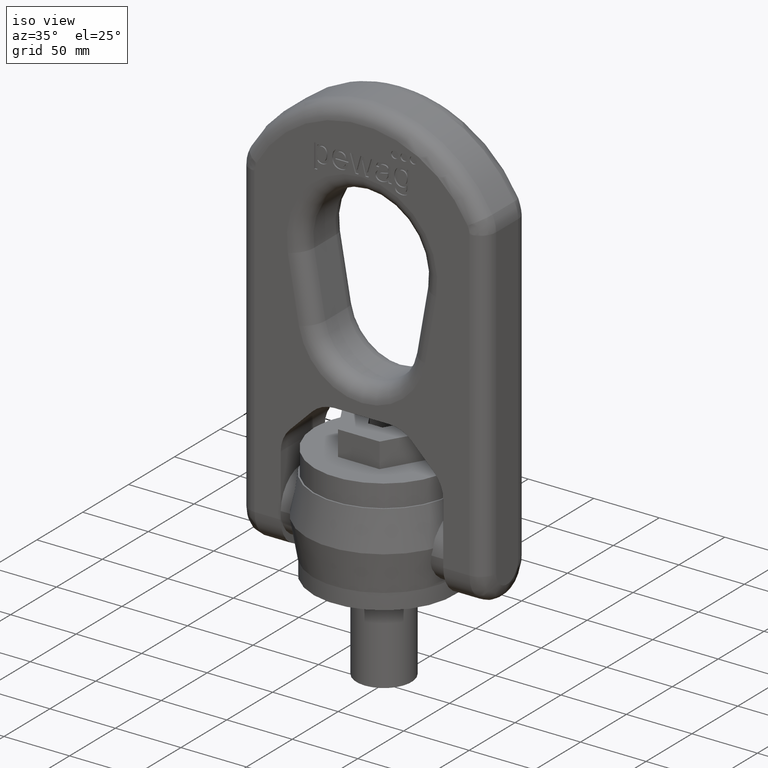
[diagram: clean part render]
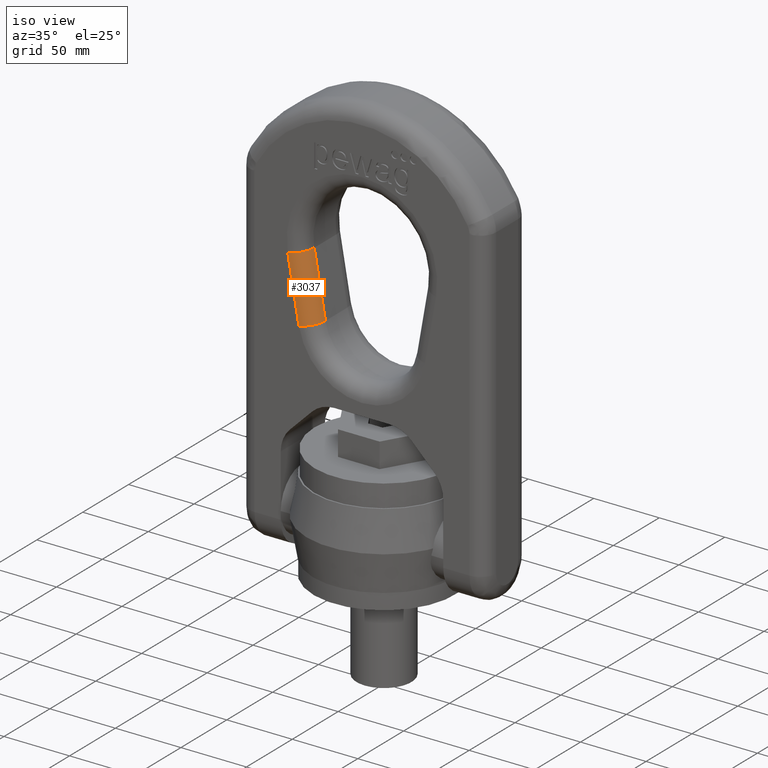
[diagram: same view with one face highlighted and labeled with its STEP entity id]
A machine part, iso view. The second image highlights one B-rep face of the part: STEP entity #3037.
In plain terms, the highlighted cylindrical surface (edge-blend (fillet) strip) has radius 12 mm, axis along (0.1736, 0, -0.9848).
Its self-contained STEP definition (entity closure, byte-faithful):
#1774=LINE('',#7069,#2082);
#1859=LINE('',#7728,#2167);
#2082=VECTOR('',#6193,1.);
#2167=VECTOR('',#6330,1.);
#2662=FACE_OUTER_BOUND('',#3430,.T.);
#3037=ADVANCED_FACE('',(#2662),#3067,.T.);
#3067=CYLINDRICAL_SURFACE('',#6060,12.);
#3430=EDGE_LOOP('',(#4685,#4686,#4687,#4688));
#4685=ORIENTED_EDGE('',*,*,#5746,.T.);
#4686=ORIENTED_EDGE('',*,*,#5353,.F.);
#4687=ORIENTED_EDGE('',*,*,#5747,.F.);
#4688=ORIENTED_EDGE('',*,*,#5176,.F.);
#4743=VERTEX_POINT('',#7070);
#4744=VERTEX_POINT('',#7071);
#4911=VERTEX_POINT('',#7722);
#4914=VERTEX_POINT('',#7727);
#5176=EDGE_CURVE('',#4743,#4744,#1774,.T.);
#5353=EDGE_CURVE('',#4914,#4911,#1859,.T.);
#5746=EDGE_CURVE('',#4743,#4911,#5824,.T.);
#5747=EDGE_CURVE('',#4744,#4914,#5825,.T.);
#5824=CIRCLE('',#6057,12.);
#5825=CIRCLE('',#6059,12.);
#6057=AXIS2_PLACEMENT_3D('',#9838,#6922,#6923);
#6059=AXIS2_PLACEMENT_3D('',#9840,#6926,#6927);
#6060=AXIS2_PLACEMENT_3D('',#9841,#6928,#6929);
#6193=DIRECTION('',(-0.173648177666931,0.,0.984807753012208));
#6330=DIRECTION('',(0.173648177666931,0.,-0.984807753012208));
#6922=DIRECTION('',(-0.173648177666931,0.,0.984807753012208));
#6923=DIRECTION('',(0.984807753012208,0.,0.173648177666931));
#6926=DIRECTION('',(-0.173648177666928,0.,0.984807753012208));
#6927=DIRECTION('',(0.984807753012208,0.,0.173648177666928));
#6928=DIRECTION('',(0.173648177666931,0.,-0.984807753012208));
#6929=DIRECTION('',(-0.984807753012208,0.,-0.173648177666931));
#7069=CARTESIAN_POINT('',(-56.626445798202,-24.,215.515229784152));
#7070=CARTESIAN_POINT('',(-48.1416663753399,-24.,167.395654499807));
#7071=CARTESIAN_POINT('',(-56.626445798202,-24.,215.515229784152));
#7722=CARTESIAN_POINT('',(-36.3239733391934,-12.,169.47943263181));
#7727=CARTESIAN_POINT('',(-44.8087527620555,-12.,217.599007916155));
#7728=CARTESIAN_POINT('',(-36.3239733391934,-12.,169.47943263181));
#9838=CARTESIAN_POINT('',(-48.1416663753399,-12.,167.395654499807));
#9840=CARTESIAN_POINT('',(-56.626445798202,-12.,215.515229784152));
#9841=CARTESIAN_POINT('',(-56.9456645986393,-12.,217.325609563552));